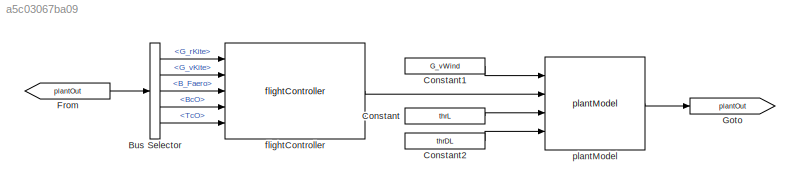
MODEL slx_a5c03067ba09
KIND model
CONFIG AbsTol = auto
CONFIG EnableMultiTasking = off
CONFIG FixedStep = auto
CONFIG MaxStep = auto
CONFIG MinStep = auto
CONFIG RelTol = 1e-3
CONFIG SampleTimeConstraint = Unconstrained
CONFIG Solver = VariableStepAuto
CONFIG SolverName = VariableStepAuto
CONFIG StartTime = 0.0
CONFIG StopTime = 10.0
BLOCK [BusSelector] Bus Selector
  OutputSignals = G_rKite,G_vKite,B_Faero,BcO,TcO
  Ports = [1, 5]
BLOCK [Constant] Constant
  Value = thrL
BLOCK [Constant] Constant1
  Value = G_vWind
BLOCK [Constant] Constant2
  Value = thrDL
BLOCK [From] From
  GotoTag = plantOut
BLOCK [Goto] Goto
  GotoTag = plantOut
BLOCK [Reference] flightController  REF=flightController_cl/flightController
  Ports = [5, 1]
  SourceBlock = flightController_cl/flightController
BLOCK [Reference] plantModel  REF=plantModel_cl/plantModel
  Ports = [4, 1]
  SourceBlock = plantModel_cl/plantModel
LINE Bus Selector:1 -> flightController:1
LINE Bus Selector:2 -> flightController:2
LINE Bus Selector:3 -> flightController:3
LINE Bus Selector:4 -> flightController:4
LINE Bus Selector:5 -> flightController:5
LINE Constant1:1 -> plantModel:1
LINE Constant2:1 -> plantModel:4
LINE Constant:1 -> plantModel:3
LINE From:1 -> Bus Selector:1
LINE flightController:1 -> plantModel:2
LINE plantModel:1 -> Goto:1
